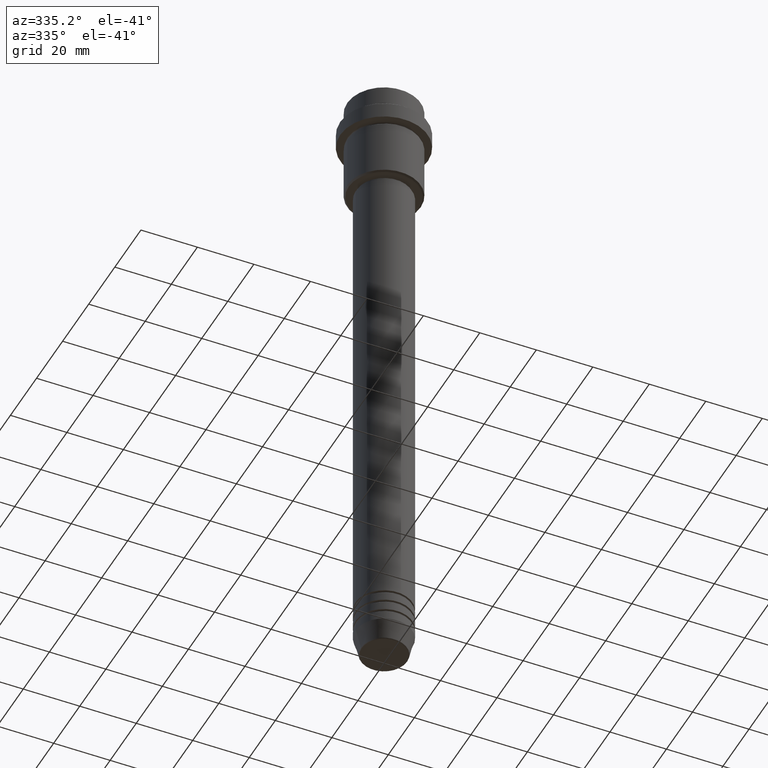
[diagram: clean part render]
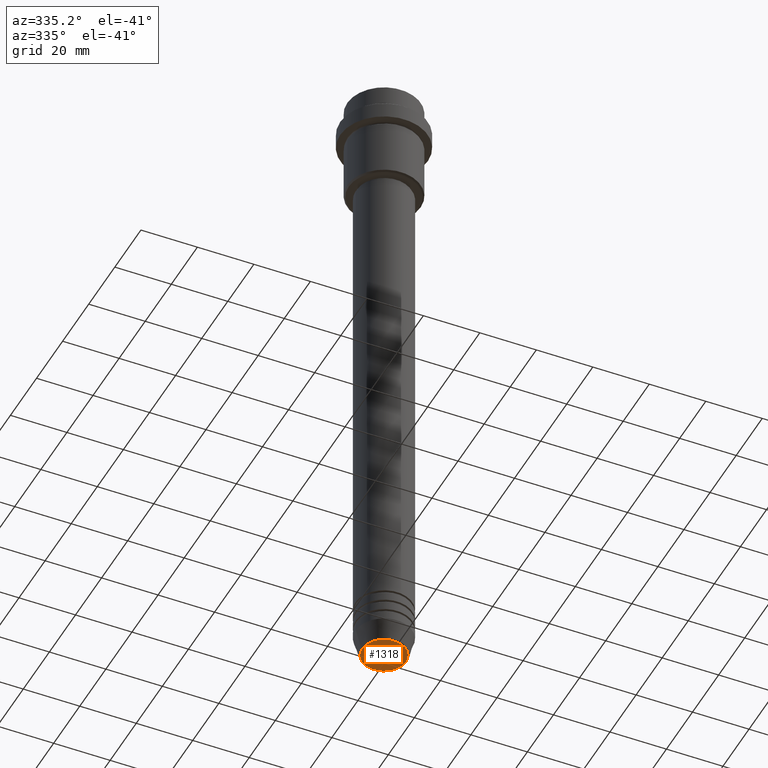
[diagram: same view with one face highlighted and labeled with its STEP entity id]
A machine part, auxiliary view. The second image highlights one B-rep face of the part: STEP entity #1318.
In plain terms, the highlighted planar face has unit normal (0, -0, 1).
Its self-contained STEP definition (entity closure, byte-faithful):
#70 = DIRECTION ( 'NONE',  ( 1.000000000000000000, 0.000000000000000000, 0.000000000000000000 ) ) ;
#76 = FACE_OUTER_BOUND ( 'NONE', #146, .T. ) ;
#111 = AXIS2_PLACEMENT_3D ( 'NONE', #1250, #594, #1033 ) ;
#134 = CARTESIAN_POINT ( 'NONE',  ( 7.740692158992664496, 0.000000000000000000, -231.0000000000000284 ) ) ;
#146 = EDGE_LOOP ( 'NONE', ( #698, #321 ) ) ;
#321 = ORIENTED_EDGE ( 'NONE', *, *, #1096, .T. ) ;
#493 = CARTESIAN_POINT ( 'NONE',  ( 0.000000000000000000, 0.000000000000000000, -231.0000000000000284 ) ) ;
#502 = CIRCLE ( 'NONE', #977, 7.740692158992664496 ) ;
#548 = VERTEX_POINT ( 'NONE', #134 ) ;
#550 = DIRECTION ( 'NONE',  ( 1.000000000000000000, 0.000000000000000000, 0.000000000000000000 ) ) ;
#594 = DIRECTION ( 'NONE',  ( 0.000000000000000000, 0.000000000000000000, -1.000000000000000000 ) ) ;
#669 = VERTEX_POINT ( 'NONE', #713 ) ;
#698 = ORIENTED_EDGE ( 'NONE', *, *, #1181, .T. ) ;
#713 = CARTESIAN_POINT ( 'NONE',  ( -7.740692158992664496, 9.775343368540045052E-16, -231.0000000000000284 ) ) ;
#793 = AXIS2_PLACEMENT_3D ( 'NONE', #1289, #1282, #550 ) ;
#977 = AXIS2_PLACEMENT_3D ( 'NONE', #493, #1360, #70 ) ;
#1033 = DIRECTION ( 'NONE',  ( 1.000000000000000000, 0.000000000000000000, 0.000000000000000000 ) ) ;
#1096 = EDGE_CURVE ( 'NONE', #669, #548, #502, .T. ) ;
#1181 = EDGE_CURVE ( 'NONE', #548, #669, #1375, .T. ) ;
#1184 = PLANE ( 'NONE',  #793 ) ;
#1250 = CARTESIAN_POINT ( 'NONE',  ( 0.000000000000000000, 0.000000000000000000, -231.0000000000000284 ) ) ;
#1282 = DIRECTION ( 'NONE',  ( 0.000000000000000000, -0.000000000000000000, 1.000000000000000000 ) ) ;
#1289 = CARTESIAN_POINT ( 'NONE',  ( 0.000000000000000000, 0.000000000000000000, -231.0000000000000284 ) ) ;
#1318 = ADVANCED_FACE ( 'NONE', ( #76 ), #1184, .F. ) ;
#1360 = DIRECTION ( 'NONE',  ( 0.000000000000000000, 0.000000000000000000, -1.000000000000000000 ) ) ;
#1375 = CIRCLE ( 'NONE', #111, 7.740692158992664496 ) ;